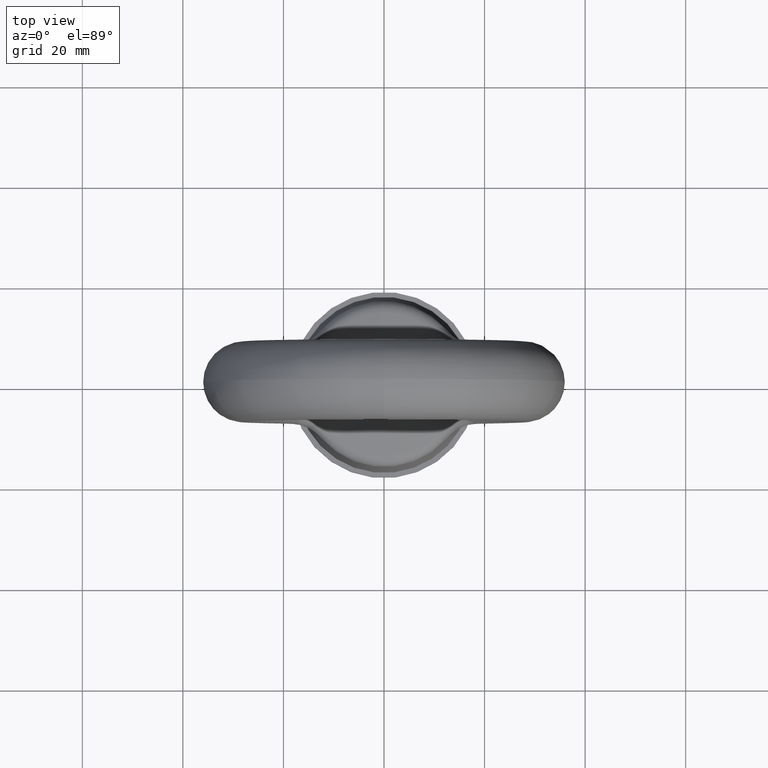
[diagram: clean part render]
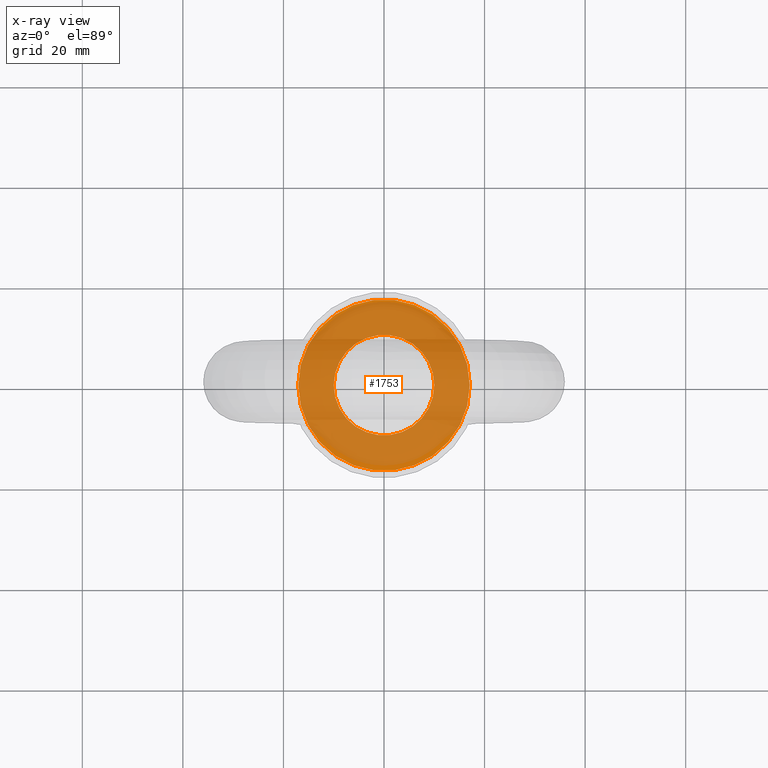
[diagram: x-ray — body ghosted, one internal face saturated and labeled with its STEP entity id]
A machine part, top view, then the same camera in x-ray: the body is ghosted and one INTERNAL B-rep face — a face not visible from any outside direction — is saturated and labeled: STEP entity #1753.
In plain terms, the highlighted planar face has unit normal (0, 0, 1).
Its self-contained STEP definition (entity closure, byte-faithful):
#488 = CARTESIAN_POINT ( 'NONE',  ( 0.0000000000000000000, 0.0000000000000000000, -38.20000100000029900 ) ) ;
#540 = DIRECTION ( 'NONE',  ( 1.000000000000000000, 0.0000000000000000000, 0.0000000000000000000 ) ) ;
#541 = DIRECTION ( 'NONE',  ( 0.0000000000000000000, 0.0000000000000000000, -1.000000000000000000 ) ) ;
#542 = AXIS2_PLACEMENT_3D ( 'NONE', #488, #541, #540 ) ;
#543 = CIRCLE ( 'NONE', #542, 10.00000000000000000 ) ;
#589 = CARTESIAN_POINT ( 'NONE',  ( -17.04999900000000000, 2.087953710806517600E-015, -38.20000100000029900 ) ) ;
#1753 = ADVANCED_FACE ( 'NONE', ( #3316, #3295 ), #3294, .T. ) ;
#1754 = EDGE_LOOP ( 'NONE', ( #1755, #1756 ) ) ;
#1755 = ORIENTED_EDGE ( 'NONE', *, *, #1775, .T. ) ;
#1756 = ORIENTED_EDGE ( 'NONE', *, *, #1804, .T. ) ;
#1757 = EDGE_LOOP ( 'NONE', ( #1758, #1759 ) ) ;
#1758 = ORIENTED_EDGE ( 'NONE', *, *, #2214, .F. ) ;
#1759 = ORIENTED_EDGE ( 'NONE', *, *, #1761, .F. ) ;
#1761 = EDGE_CURVE ( 'NONE', #1821, #1762, #3289, .T. ) ;
#1762 = VERTEX_POINT ( 'NONE', #3284 ) ;
#1773 = VERTEX_POINT ( 'NONE', #3262 ) ;
#1775 = EDGE_CURVE ( 'NONE', #1776, #1773, #3261, .T. ) ;
#1776 = VERTEX_POINT ( 'NONE', #3256 ) ;
#1804 = EDGE_CURVE ( 'NONE', #1773, #1776, #543, .T. ) ;
#1821 = VERTEX_POINT ( 'NONE', #589 ) ;
#2214 = EDGE_CURVE ( 'NONE', #1762, #1821, #9896, .T. ) ;
#3256 = CARTESIAN_POINT ( 'NONE',  ( 10.00000000000000000, 0.0000000000000000000, -38.20000100000029900 ) ) ;
#3257 = DIRECTION ( 'NONE',  ( 1.000000000000000000, 0.0000000000000000000, 0.0000000000000000000 ) ) ;
#3258 = DIRECTION ( 'NONE',  ( 0.0000000000000000000, 0.0000000000000000000, -1.000000000000000000 ) ) ;
#3259 = CARTESIAN_POINT ( 'NONE',  ( 0.0000000000000000000, 0.0000000000000000000, -38.20000100000029900 ) ) ;
#3260 = AXIS2_PLACEMENT_3D ( 'NONE', #3259, #3258, #3257 ) ;
#3261 = CIRCLE ( 'NONE', #3260, 10.00000000000000000 ) ;
#3262 = CARTESIAN_POINT ( 'NONE',  ( -10.00000000000000000, 1.224606353822377300E-015, -38.20000100000029900 ) ) ;
#3284 = CARTESIAN_POINT ( 'NONE',  ( 17.04999900000000000, 0.0000000000000000000, -38.20000100000029900 ) ) ;
#3285 = DIRECTION ( 'NONE',  ( 1.000000000000000000, 0.0000000000000000000, 0.0000000000000000000 ) ) ;
#3286 = DIRECTION ( 'NONE',  ( 0.0000000000000000000, 0.0000000000000000000, -1.000000000000000000 ) ) ;
#3287 = CARTESIAN_POINT ( 'NONE',  ( 0.0000000000000000000, 0.0000000000000000000, -38.20000100000029900 ) ) ;
#3288 = AXIS2_PLACEMENT_3D ( 'NONE', #3287, #3286, #3285 ) ;
#3289 = CIRCLE ( 'NONE', #3288, 17.04999900000000000 ) ;
#3290 = DIRECTION ( 'NONE',  ( 1.000000000000000000, 0.0000000000000000000, 0.0000000000000000000 ) ) ;
#3291 = DIRECTION ( 'NONE',  ( 0.0000000000000000000, 0.0000000000000000000, 1.000000000000000000 ) ) ;
#3292 = CARTESIAN_POINT ( 'NONE',  ( 0.0000000000000000000, 0.0000000000000000000, -38.20000100000019900 ) ) ;
#3293 = AXIS2_PLACEMENT_3D ( 'NONE', #3292, #3291, #3290 ) ;
#3294 = PLANE ( 'NONE',  #3293 ) ;
#3295 = FACE_OUTER_BOUND ( 'NONE', #1757, .T. ) ;
#3316 = FACE_BOUND ( 'NONE', #1754, .T. ) ;
#9892 = DIRECTION ( 'NONE',  ( 1.000000000000000000, 0.0000000000000000000, 0.0000000000000000000 ) ) ;
#9893 = DIRECTION ( 'NONE',  ( 0.0000000000000000000, 0.0000000000000000000, -1.000000000000000000 ) ) ;
#9894 = CARTESIAN_POINT ( 'NONE',  ( 0.0000000000000000000, 0.0000000000000000000, -38.20000100000029900 ) ) ;
#9895 = AXIS2_PLACEMENT_3D ( 'NONE', #9894, #9893, #9892 ) ;
#9896 = CIRCLE ( 'NONE', #9895, 17.04999900000000000 ) ;